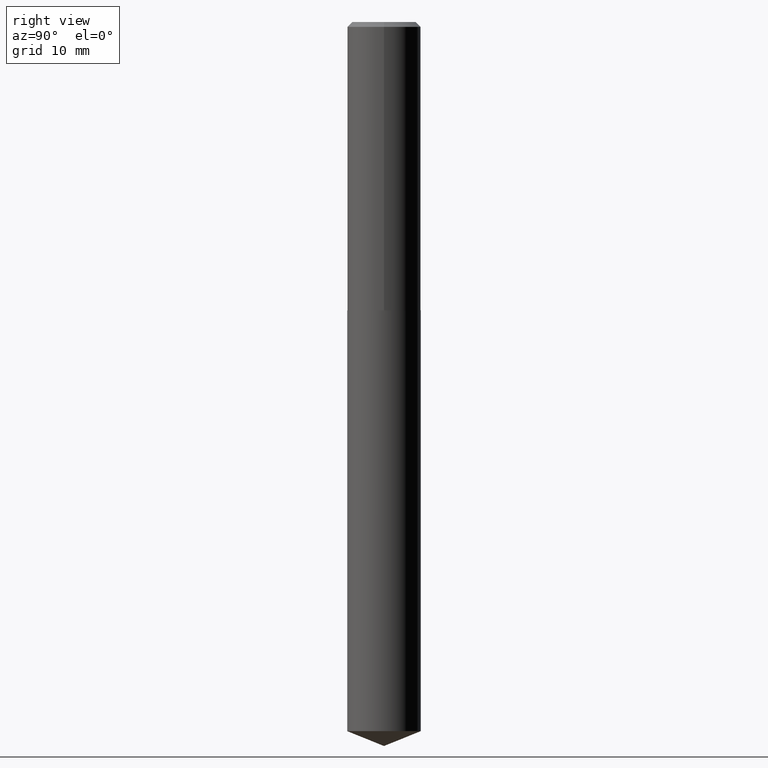
[diagram: clean part render]
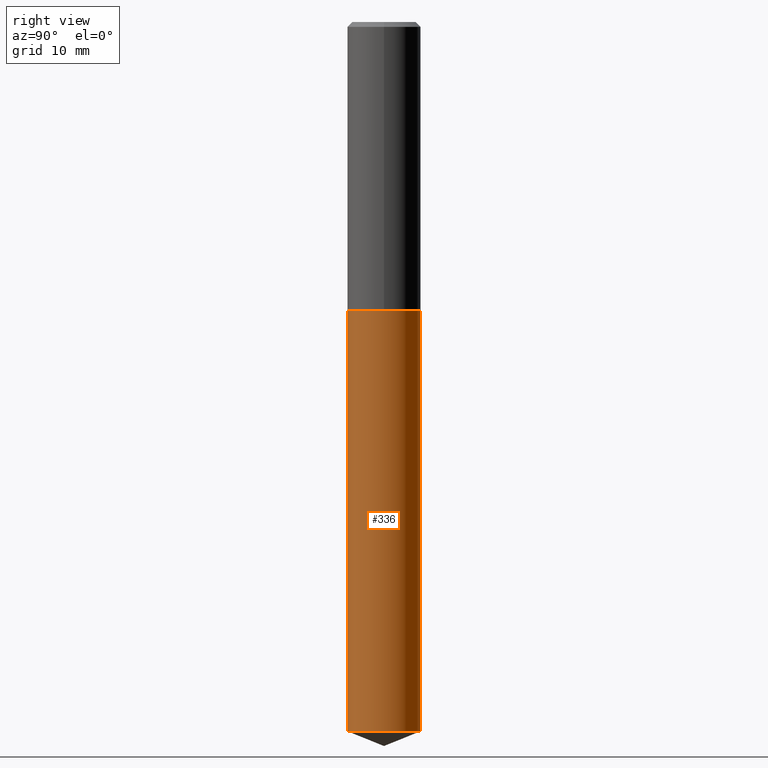
[diagram: same view with one face highlighted and labeled with its STEP entity id]
A machine part, right view. The second image highlights one B-rep face of the part: STEP entity #336.
In plain terms, the highlighted cylindrical surface (partial cylindrical patch) has radius 5.9995 mm, axis along (-0, 0, 1).
Its self-contained STEP definition (entity closure, byte-faithful):
#1 = LINE ( 'NONE', #293, #345 ) ;
#10 = CIRCLE ( 'NONE', #91, 0.2361999999999999933 ) ;
#11 = CYLINDRICAL_SURFACE ( 'NONE', #86, 0.2361999999999999933 ) ;
#23 = DIRECTION ( 'NONE',  ( -2.445731720170191402E-29, 3.491104831052412813E-15, 1.000000000000000000 ) ) ;
#33 = DIRECTION ( 'NONE',  ( -2.445731720170191402E-29, 3.491104831052412813E-15, 1.000000000000000000 ) ) ;
#34 = VECTOR ( 'NONE', #33, 39.37007874015748143 ) ;
#39 = CARTESIAN_POINT ( 'NONE',  ( 1.678301941865468215E-15, 0.2361999999999935540, -1.850700000000000900 ) ) ;
#42 = EDGE_CURVE ( 'NONE', #257, #328, #1, .T. ) ;
#60 = EDGE_CURVE ( 'NONE', #349, #257, #10, .T. ) ;
#86 = AXIS2_PLACEMENT_3D ( 'NONE', #277, #271, #239 ) ;
#91 = AXIS2_PLACEMENT_3D ( 'NONE', #148, #265, #204 ) ;
#93 = CARTESIAN_POINT ( 'NONE',  ( -1.649375784469385099E-15, -0.2362000000000159805, -4.550569005457735905 ) ) ;
#122 = CIRCLE ( 'NONE', #144, 0.2361999999999999933 ) ;
#124 = CARTESIAN_POINT ( 'NONE',  ( -1.649375784469450574E-15, -0.2362000000000064603, -1.850699999999999124 ) ) ;
#144 = AXIS2_PLACEMENT_3D ( 'NONE', #229, #178, #363 ) ;
#148 = CARTESIAN_POINT ( 'NONE',  ( 1.112898438655916629E-28, -1.588721024195918932E-14, -4.550569005457737681 ) ) ;
#162 = EDGE_CURVE ( 'NONE', #251, #328, #122, .T. ) ;
#178 = DIRECTION ( 'NONE',  ( -2.445731720170191122E-29, 3.491104831052412813E-15, 1.000000000000000000 ) ) ;
#180 = CARTESIAN_POINT ( 'NONE',  ( -1.649375784469450574E-15, -0.2362000000000064603, -1.850699999999999124 ) ) ;
#191 = ORIENTED_EDGE ( 'NONE', *, *, #42, .T. ) ;
#204 = DIRECTION ( 'NONE',  ( -6.982962677686265922E-15, -1.000000000000000000, 4.626330217890369336E-15 ) ) ;
#226 = ORIENTED_EDGE ( 'NONE', *, *, #60, .T. ) ;
#229 = CARTESIAN_POINT ( 'NONE',  ( 4.525829119606832626E-29, -6.461684513797009689E-15, -1.850700000000000012 ) ) ;
#234 = ORIENTED_EDGE ( 'NONE', *, *, #278, .F. ) ;
#239 = DIRECTION ( 'NONE',  ( -6.982962677686265922E-15, -1.000000000000000000, 3.469747663417777397E-15 ) ) ;
#251 = VERTEX_POINT ( 'NONE', #124 ) ;
#257 = VERTEX_POINT ( 'NONE', #373 ) ;
#265 = DIRECTION ( 'NONE',  ( -2.445731720170191122E-29, 3.491104831052412813E-15, 1.000000000000000000 ) ) ;
#271 = DIRECTION ( 'NONE',  ( -2.445731720170191122E-29, 3.491104831052412813E-15, 1.000000000000000000 ) ) ;
#274 = FACE_OUTER_BOUND ( 'NONE', #374, .T. ) ;
#277 = CARTESIAN_POINT ( 'NONE',  ( 4.525829119606832626E-29, -6.461684513797009689E-15, -1.850700000000000012 ) ) ;
#278 = EDGE_CURVE ( 'NONE', #349, #251, #340, .T. ) ;
#293 = CARTESIAN_POINT ( 'NONE',  ( 1.678301941865401754E-15, 0.2361999999999935540, -1.850700000000000900 ) ) ;
#328 = VERTEX_POINT ( 'NONE', #39 ) ;
#336 = ADVANCED_FACE ( 'NONE', ( #274 ), #11, .T. ) ;
#340 = LINE ( 'NONE', #180, #34 ) ;
#345 = VECTOR ( 'NONE', #23, 39.37007874015748143 ) ;
#349 = VERTEX_POINT ( 'NONE', #93 ) ;
#355 = ORIENTED_EDGE ( 'NONE', *, *, #162, .F. ) ;
#363 = DIRECTION ( 'NONE',  ( -6.982962677686265922E-15, -1.000000000000000000, 3.469747663417777397E-15 ) ) ;
#373 = CARTESIAN_POINT ( 'NONE',  ( 1.678301941865468412E-15, 0.2361999999999842281, -4.550569005457738569 ) ) ;
#374 = EDGE_LOOP ( 'NONE', ( #226, #191, #355, #234 ) ) ;